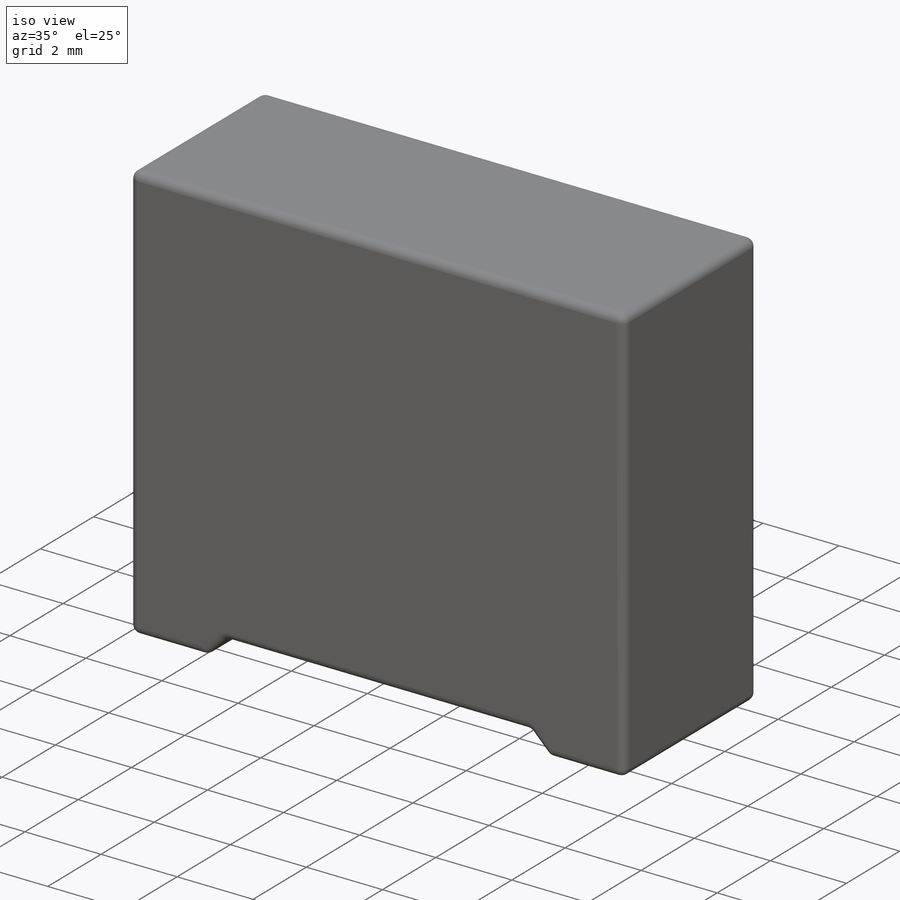
[diagram: iso view]
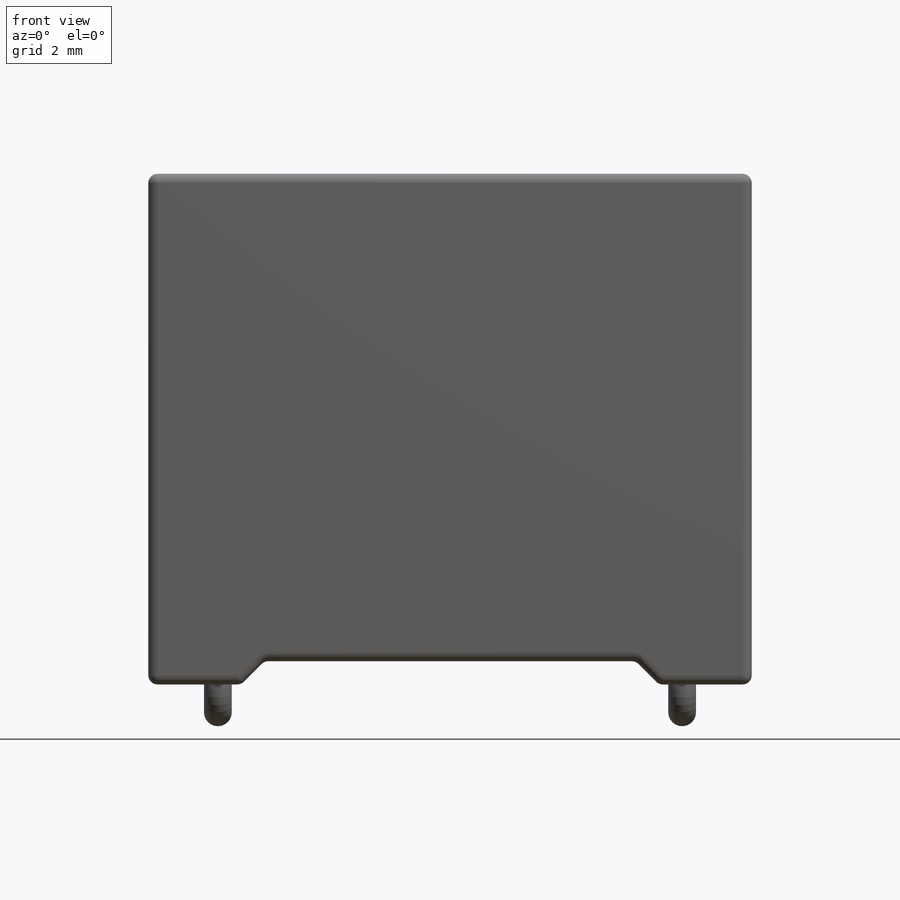
[diagram: front view]
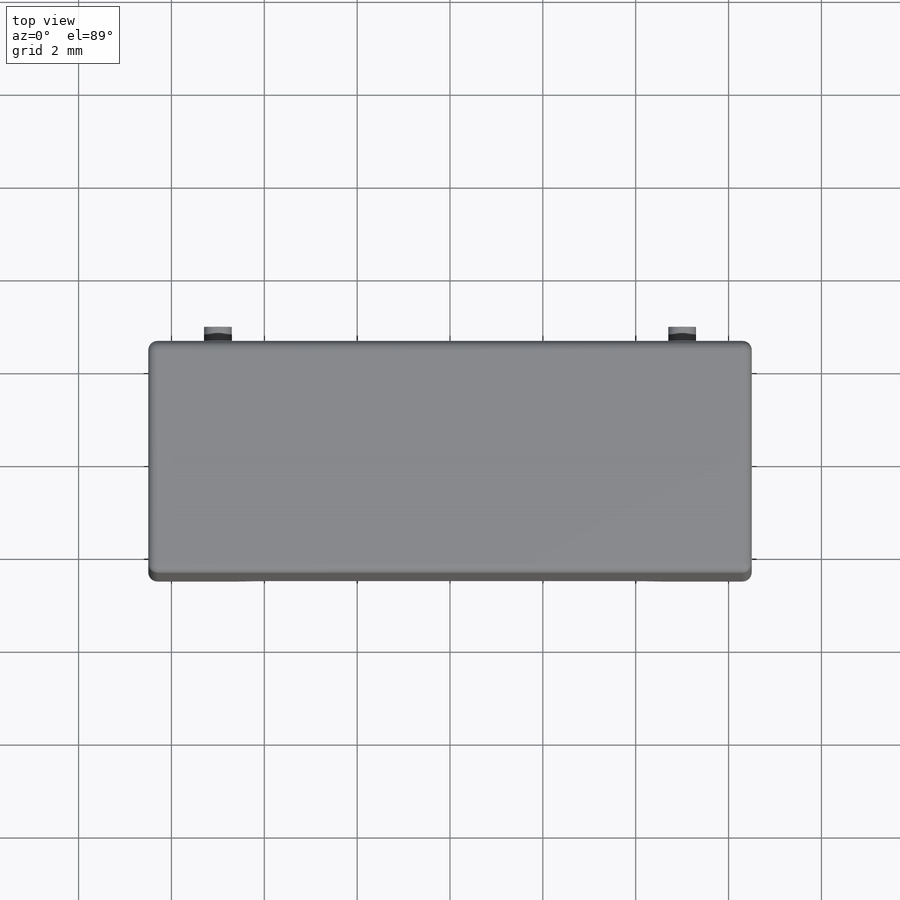
[diagram: top view]
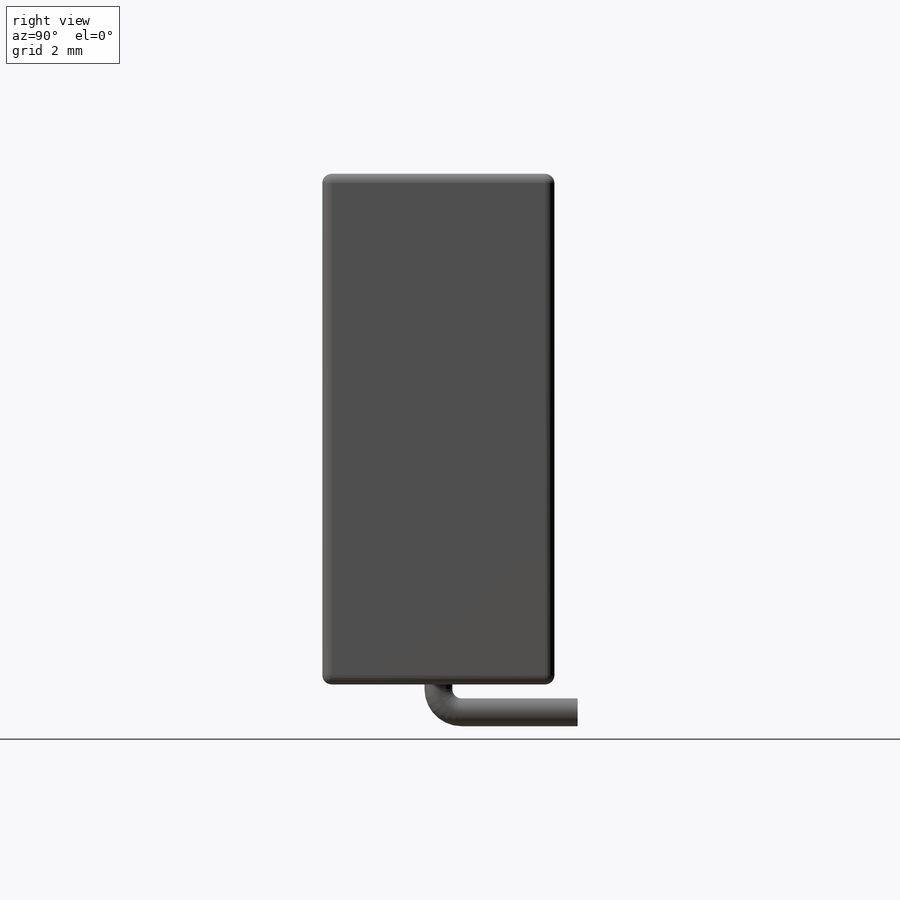
[diagram: right view]
SOLIDWORKS PART (.sldprt)
format: sldprt  version: not decoded by parser v0  size: 264,192 bytes
history: native  units: mm
features: sketch x4, material x1, extrude x1, cut_extrude x1, fillet x1, plane x1, sweep x1, mirror x1 (+12 scaffold rows collapsed)
feature tree (23):
  scaffold x12  (default folders/planes/origin — collapsed)
  material  "Material <not specified>"
  sketch  "Sketch1"  dims[D1=13.0mm D2=5.0mm]
  extrude  "Boss-Extrude1"  Depth=11mm
  sketch  "Sketch2"  dims[c1.D1=2.0mm c1.D2=0.5mm c1.D3=~1.494634mm c2.D3=45.0deg c2.D4=2.0mm]
  cut_extrude  "Cut-Extrude1"  [1 undecoded]
  sketch  "Sketch3"  dims[D1=0.6mm D2=10.0mm]
  fillet  "Fillet1"  Radius=0.2mm
  plane  "Plane1"
  sketch  "Sketch5"  dims[c1.D3=0.5mm c1.D1=0.6mm c1.D2=0.5mm c2.D3=3.0mm]
  sweep  "Sweep1"
  mirror  "Mirror1"
decode coverage: 6 of 9 modeling features carry decoded parameters
note: ~ marks probable driven/reference dimensions
note: 1 parameter value undecoded
note: suppression state not decoded; provenance and decode notes live in map.json
